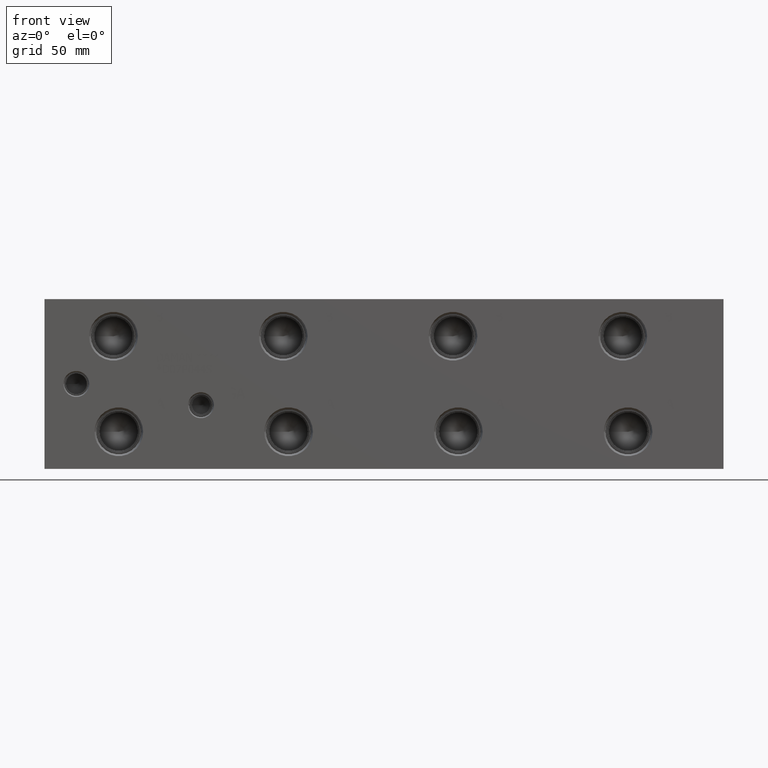
[diagram: clean part render]
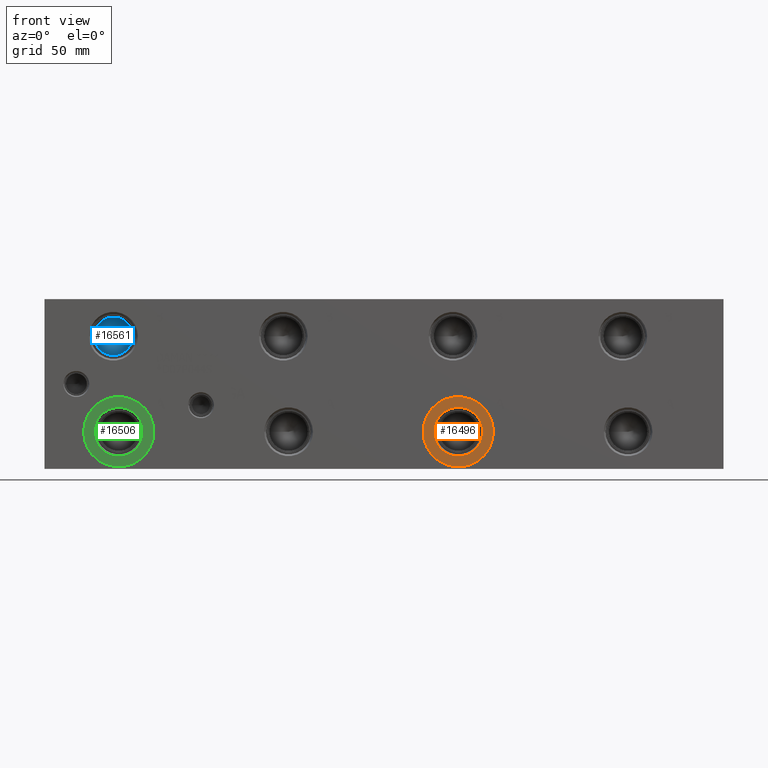
[diagram: same view with three faces highlighted in distinct colors, each labeled with its STEP entity id]
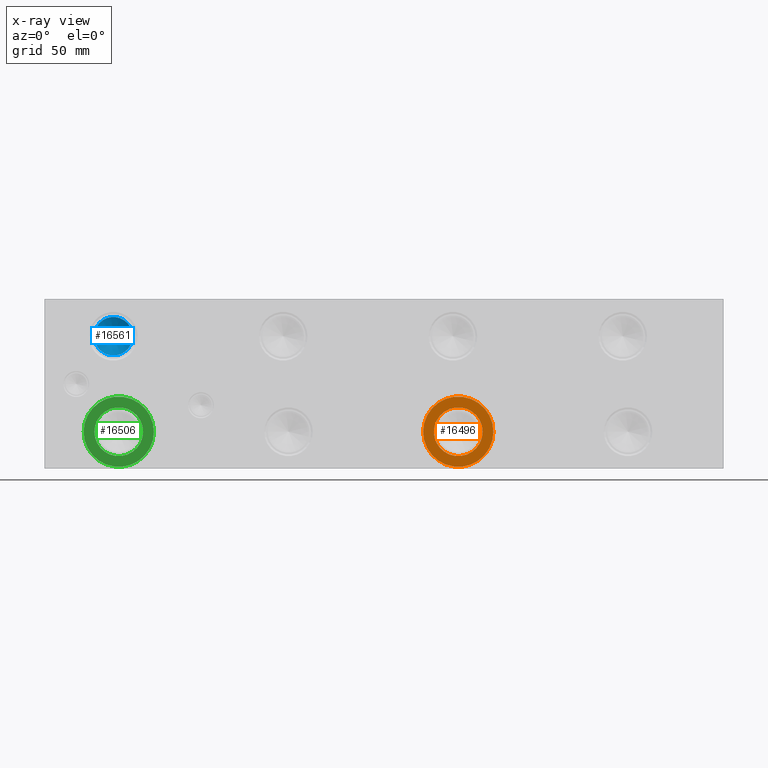
[diagram: x-ray of the same camera — body ghosted, the three highlighted faces saturated]
A machine part, front view with three faces highlighted in distinct colors.
The next image is the same camera in x-ray (body ghosted, the three faces saturated) — at least one of them is partly hidden behind the body in this view.
Their STEP definitions:

[orange] entity #16496 — the highlighted planar face has unit normal (0, 1, 0).
#421=CIRCLE('',#17373,21.0185);
#422=CIRCLE('',#17374,21.0185);
#423=CIRCLE('',#17376,14.5923);
#424=CIRCLE('',#17377,14.5923);
#950=FACE_BOUND('',#3072,.T.);
#2108=FACE_OUTER_BOUND('',#3071,.T.);
#3071=EDGE_LOOP('',(#13554,#13555));
#3072=EDGE_LOOP('',(#13556,#13557));
#7440=VERTEX_POINT('',#27484);
#7441=VERTEX_POINT('',#27486);
#7442=VERTEX_POINT('',#27490);
#7443=VERTEX_POINT('',#27491);
#9608=EDGE_CURVE('',#7440,#7441,#421,.T.);
#9609=EDGE_CURVE('',#7441,#7440,#422,.T.);
#9610=EDGE_CURVE('',#7442,#7443,#423,.T.);
#9611=EDGE_CURVE('',#7443,#7442,#424,.T.);
#13554=ORIENTED_EDGE('',*,*,#9609,.F.);
#13555=ORIENTED_EDGE('',*,*,#9608,.F.);
#13556=ORIENTED_EDGE('',*,*,#9610,.T.);
#13557=ORIENTED_EDGE('',*,*,#9611,.T.);
#15313=PLANE('',#17375);
#16496=ADVANCED_FACE('',(#2108,#950),#15313,.F.);
#17373=AXIS2_PLACEMENT_3D('',#27487,#20507,#20508);
#17374=AXIS2_PLACEMENT_3D('',#27488,#20509,#20510);
#17375=AXIS2_PLACEMENT_3D('',#27489,#20511,#20512);
#17376=AXIS2_PLACEMENT_3D('',#27492,#20513,#20514);
#17377=AXIS2_PLACEMENT_3D('',#27493,#20515,#20516);
#20507=DIRECTION('center_axis',(0.,1.,0.));
#20508=DIRECTION('ref_axis',(1.,0.,0.));
#20509=DIRECTION('center_axis',(0.,1.,0.));
#20510=DIRECTION('ref_axis',(1.,0.,0.));
#20511=DIRECTION('center_axis',(0.,1.,0.));
#20512=DIRECTION('ref_axis',(0.,0.,1.));
#20513=DIRECTION('center_axis',(0.,1.,0.));
#20514=DIRECTION('ref_axis',(1.,0.,0.));
#20515=DIRECTION('center_axis',(0.,1.,0.));
#20516=DIRECTION('ref_axis',(1.,0.,0.));
#27484=CARTESIAN_POINT('',(226.6315,0.7874,22.225));
#27486=CARTESIAN_POINT('',(268.6685,0.7874,22.225));
#27487=CARTESIAN_POINT('Origin',(247.65,0.7874,22.225));
#27488=CARTESIAN_POINT('Origin',(247.65,0.7874,22.225));
#27489=CARTESIAN_POINT('Origin',(262.2423,0.7874,22.225));
#27490=CARTESIAN_POINT('',(262.2423,0.7874,22.225));
#27491=CARTESIAN_POINT('',(233.0577,0.787400000000004,22.225));
#27492=CARTESIAN_POINT('Origin',(247.65,0.7874,22.225));
#27493=CARTESIAN_POINT('Origin',(247.65,0.7874,22.225));

[blue] entity #16561 — the highlighted conical surface has half-angle 60 deg.
#217=CONICAL_SURFACE('',#17540,5.7531,1.0471975511966);
#523=CIRCLE('',#17541,11.5062);
#524=CIRCLE('',#17542,11.5062);
#2173=FACE_OUTER_BOUND('',#3148,.T.);
#3148=EDGE_LOOP('',(#13872,#13873,#13874,#13875));
#4708=LINE('',#27818,#6150);
#6150=VECTOR('',#20898,5.7531);
#7548=VERTEX_POINT('',#27814);
#7549=VERTEX_POINT('',#27815);
#7550=VERTEX_POINT('',#27817);
#9763=EDGE_CURVE('',#7548,#7549,#523,.T.);
#9764=EDGE_CURVE('',#7549,#7550,#4708,.T.);
#9765=EDGE_CURVE('',#7549,#7548,#524,.T.);
#13872=ORIENTED_EDGE('',*,*,#9763,.T.);
#13873=ORIENTED_EDGE('',*,*,#9764,.T.);
#13874=ORIENTED_EDGE('',*,*,#9764,.F.);
#13875=ORIENTED_EDGE('',*,*,#9765,.T.);
#16561=ADVANCED_FACE('',(#2173),#217,.F.);
#17540=AXIS2_PLACEMENT_3D('',#27813,#20894,#20895);
#17541=AXIS2_PLACEMENT_3D('',#27816,#20896,#20897);
#17542=AXIS2_PLACEMENT_3D('',#27819,#20899,#20900);
#20894=DIRECTION('center_axis',(0.,-1.,0.));
#20895=DIRECTION('ref_axis',(1.,0.,0.));
#20896=DIRECTION('center_axis',(0.,-1.,0.));
#20897=DIRECTION('ref_axis',(1.,0.,0.));
#20898=DIRECTION('',(0.866025403784439,0.5,1.06057523872491E-16));
#20899=DIRECTION('center_axis',(0.,-1.,0.));
#20900=DIRECTION('ref_axis',(1.,0.,0.));
#27813=CARTESIAN_POINT('Origin',(41.275,34.1885438336748,79.375));
#27814=CARTESIAN_POINT('',(52.7812,30.86699,79.375));
#27815=CARTESIAN_POINT('',(29.7688,30.86699,79.375));
#27816=CARTESIAN_POINT('Origin',(41.275,30.86699,79.375));
#27817=CARTESIAN_POINT('',(41.275,37.5100976673497,79.375));
#27818=CARTESIAN_POINT('',(35.5219,34.1885438336748,79.375));
#27819=CARTESIAN_POINT('Origin',(41.275,30.86699,79.375));

[green] entity #16506 — the highlighted planar face has unit normal (0, 1, 0).
#439=CIRCLE('',#17401,21.0185);
#440=CIRCLE('',#17402,21.0185);
#441=CIRCLE('',#17404,14.5923);
#442=CIRCLE('',#17405,14.5923);
#952=FACE_BOUND('',#3084,.T.);
#2118=FACE_OUTER_BOUND('',#3083,.T.);
#3083=EDGE_LOOP('',(#13608,#13609));
#3084=EDGE_LOOP('',(#13610,#13611));
#7458=VERTEX_POINT('',#27538);
#7459=VERTEX_POINT('',#27540);
#7460=VERTEX_POINT('',#27544);
#7461=VERTEX_POINT('',#27545);
#9634=EDGE_CURVE('',#7458,#7459,#439,.T.);
#9635=EDGE_CURVE('',#7459,#7458,#440,.T.);
#9636=EDGE_CURVE('',#7460,#7461,#441,.T.);
#9637=EDGE_CURVE('',#7461,#7460,#442,.T.);
#13608=ORIENTED_EDGE('',*,*,#9635,.F.);
#13609=ORIENTED_EDGE('',*,*,#9634,.F.);
#13610=ORIENTED_EDGE('',*,*,#9636,.T.);
#13611=ORIENTED_EDGE('',*,*,#9637,.T.);
#15315=PLANE('',#17403);
#16506=ADVANCED_FACE('',(#2118,#952),#15315,.F.);
#17401=AXIS2_PLACEMENT_3D('',#27541,#20571,#20572);
#17402=AXIS2_PLACEMENT_3D('',#27542,#20573,#20574);
#17403=AXIS2_PLACEMENT_3D('',#27543,#20575,#20576);
#17404=AXIS2_PLACEMENT_3D('',#27546,#20577,#20578);
#17405=AXIS2_PLACEMENT_3D('',#27547,#20579,#20580);
#20571=DIRECTION('center_axis',(0.,1.,0.));
#20572=DIRECTION('ref_axis',(1.,0.,0.));
#20573=DIRECTION('center_axis',(0.,1.,0.));
#20574=DIRECTION('ref_axis',(1.,0.,0.));
#20575=DIRECTION('center_axis',(0.,1.,0.));
#20576=DIRECTION('ref_axis',(0.,0.,1.));
#20577=DIRECTION('center_axis',(0.,1.,0.));
#20578=DIRECTION('ref_axis',(1.,0.,0.));
#20579=DIRECTION('center_axis',(0.,1.,0.));
#20580=DIRECTION('ref_axis',(1.,0.,0.));
#27538=CARTESIAN_POINT('',(23.4315,0.7874,22.225));
#27540=CARTESIAN_POINT('',(65.4685,0.7874,22.225));
#27541=CARTESIAN_POINT('Origin',(44.45,0.7874,22.225));
#27542=CARTESIAN_POINT('Origin',(44.45,0.7874,22.225));
#27543=CARTESIAN_POINT('Origin',(59.0423,0.7874,22.225));
#27544=CARTESIAN_POINT('',(59.0423,0.7874,22.225));
#27545=CARTESIAN_POINT('',(29.8577,0.787399999999999,22.225));
#27546=CARTESIAN_POINT('Origin',(44.45,0.7874,22.225));
#27547=CARTESIAN_POINT('Origin',(44.45,0.7874,22.225));